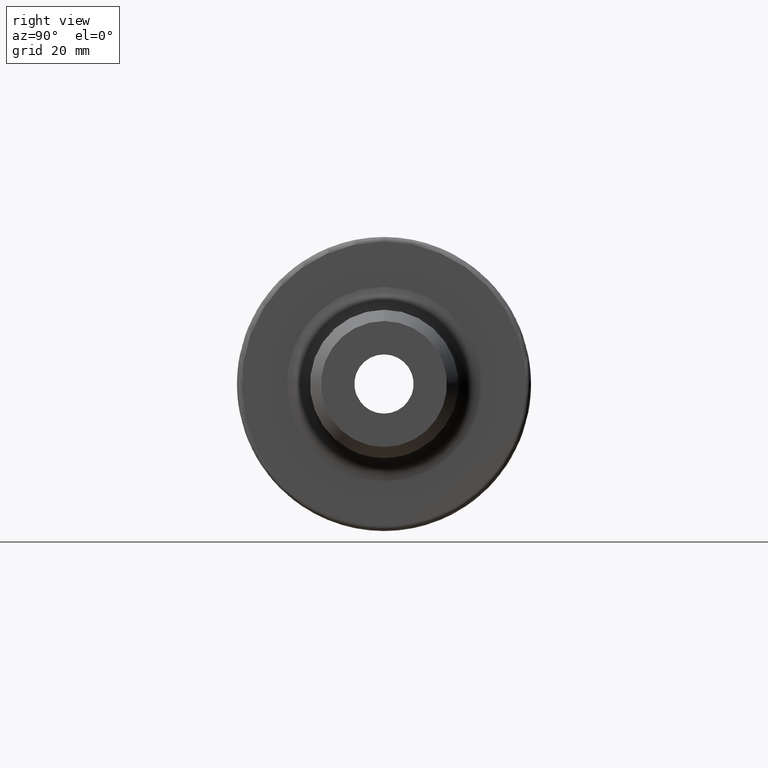
[diagram: clean part render]
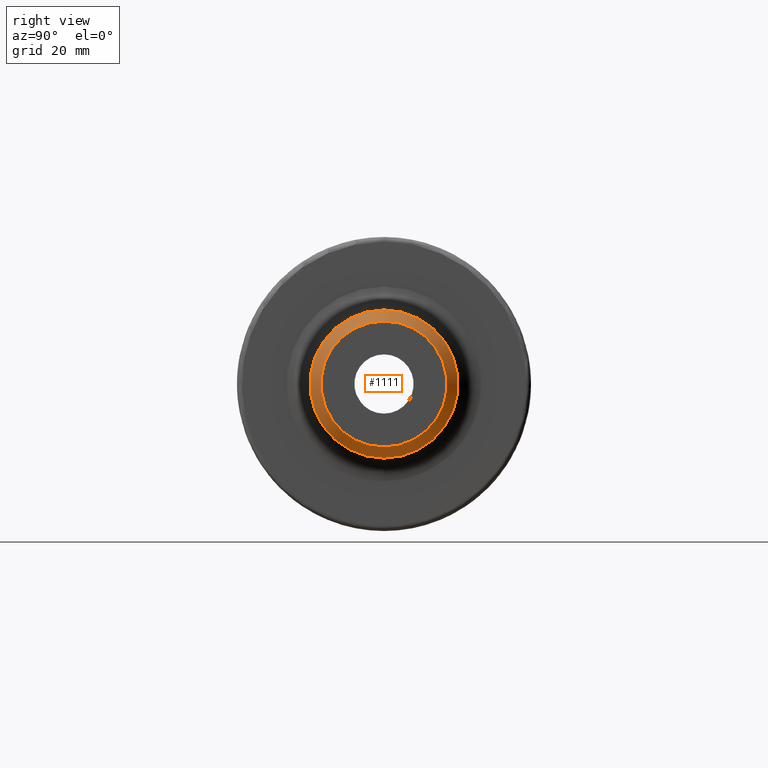
[diagram: same view with one face highlighted and labeled with its STEP entity id]
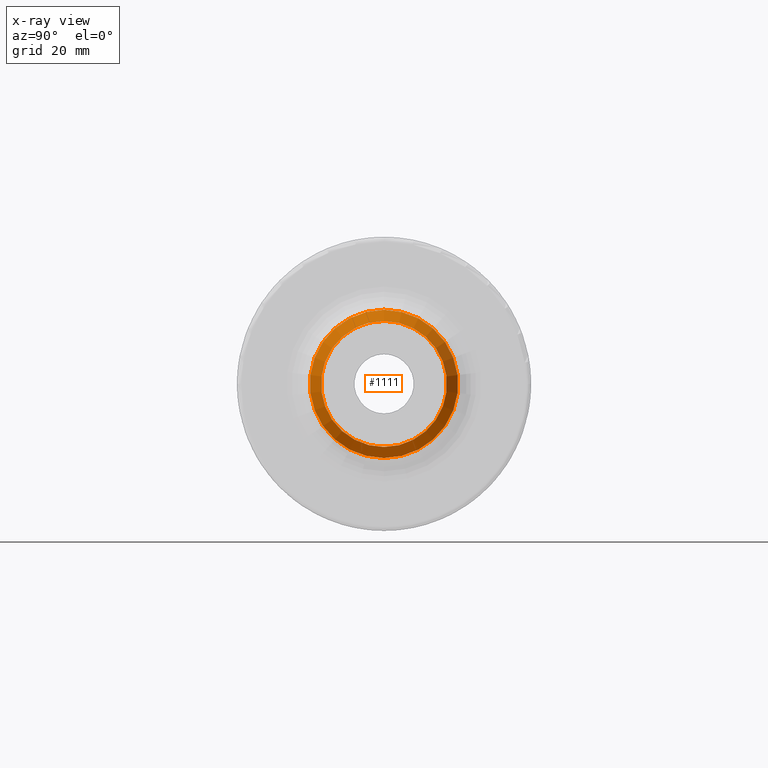
[diagram: x-ray of the same camera — body ghosted, the highlighted face saturated]
A machine part, right view. The second image highlights one B-rep face of the part: STEP entity #1111.
The next image is the same camera in x-ray: the body ghosted, the highlighted face saturated — about 0% of this face is hidden behind the body in this view.
In plain terms, the highlighted conical surface has half-angle 25 deg.
Its self-contained STEP definition (entity closure, byte-faithful):
#38=CONICAL_SURFACE('',#1210,14.6875,0.436332312998581);
#92=CIRCLE('',#1194,15.875);
#103=CIRCLE('',#1211,13.5);
#189=FACE_OUTER_BOUND('',#260,.T.);
#260=EDGE_LOOP('',(#802,#803,#804,#805));
#363=LINE('',#2007,#423);
#423=VECTOR('',#1385,14.6875);
#481=VERTEX_POINT('',#1898);
#495=VERTEX_POINT('',#2005);
#595=EDGE_CURVE('',#481,#481,#92,.T.);
#614=EDGE_CURVE('',#495,#495,#103,.T.);
#615=EDGE_CURVE('',#495,#481,#363,.T.);
#802=ORIENTED_EDGE('',*,*,#614,.F.);
#803=ORIENTED_EDGE('',*,*,#615,.T.);
#804=ORIENTED_EDGE('',*,*,#595,.T.);
#805=ORIENTED_EDGE('',*,*,#615,.F.);
#1111=ADVANCED_FACE('',(#189),#38,.T.);
#1194=AXIS2_PLACEMENT_3D('',#1899,#1345,#1346);
#1210=AXIS2_PLACEMENT_3D('',#2004,#1381,#1382);
#1211=AXIS2_PLACEMENT_3D('',#2006,#1383,#1384);
#1345=DIRECTION('center_axis',(1.,0.,0.));
#1346=DIRECTION('ref_axis',(0.,0.,-1.));
#1381=DIRECTION('center_axis',(-1.,0.,0.));
#1382=DIRECTION('ref_axis',(0.,0.,-1.));
#1383=DIRECTION('center_axis',(1.,0.,0.));
#1384=DIRECTION('ref_axis',(0.,0.,-1.));
#1385=DIRECTION('',(-0.906307787036651,-5.17558101501964E-17,0.422618261740698));
#1898=CARTESIAN_POINT('',(58.4067960637898,-1.94412679364642E-15,15.875));
#1899=CARTESIAN_POINT('Origin',(58.4067960637898,0.,0.));
#2004=CARTESIAN_POINT('Origin',(60.9533980318949,0.,0.));
#2005=CARTESIAN_POINT('',(63.5,-1.65327317884893E-15,13.5));
#2006=CARTESIAN_POINT('Origin',(63.5,0.,0.));
#2007=CARTESIAN_POINT('',(60.9533980318949,-1.79869998624767E-15,14.6875));